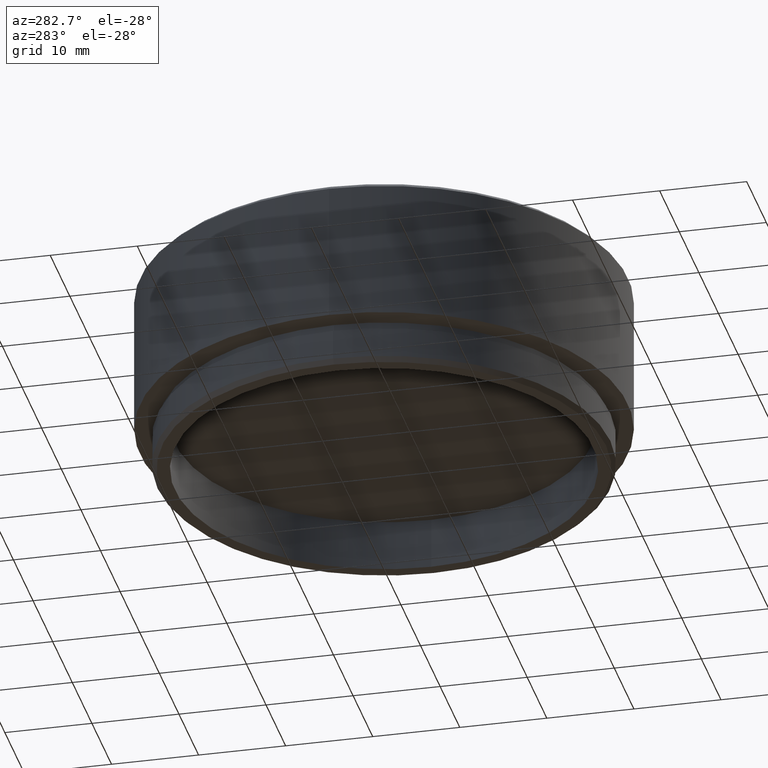
[diagram: clean part render]
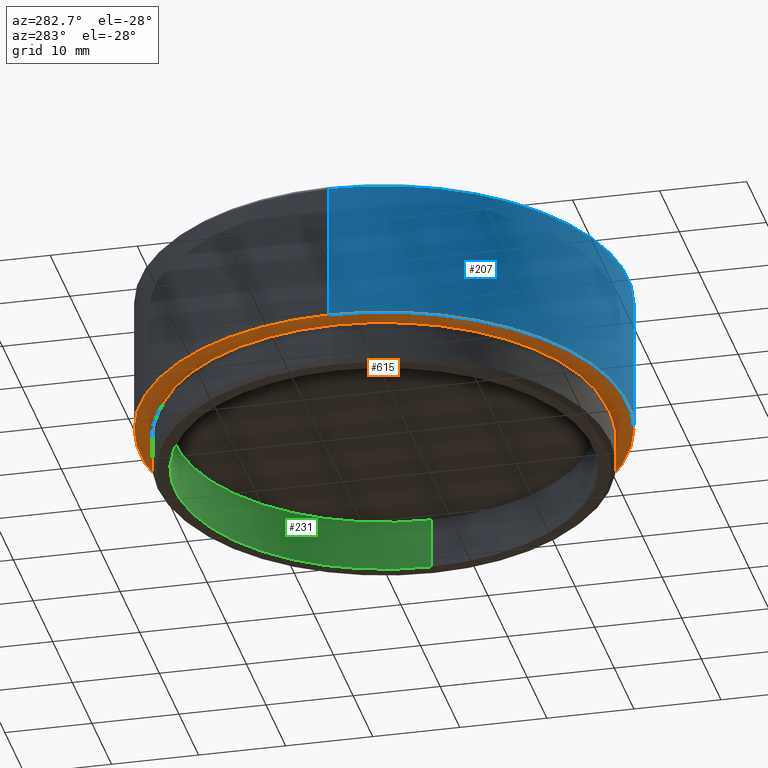
[diagram: same view with three faces highlighted in distinct colors, each labeled with its STEP entity id]
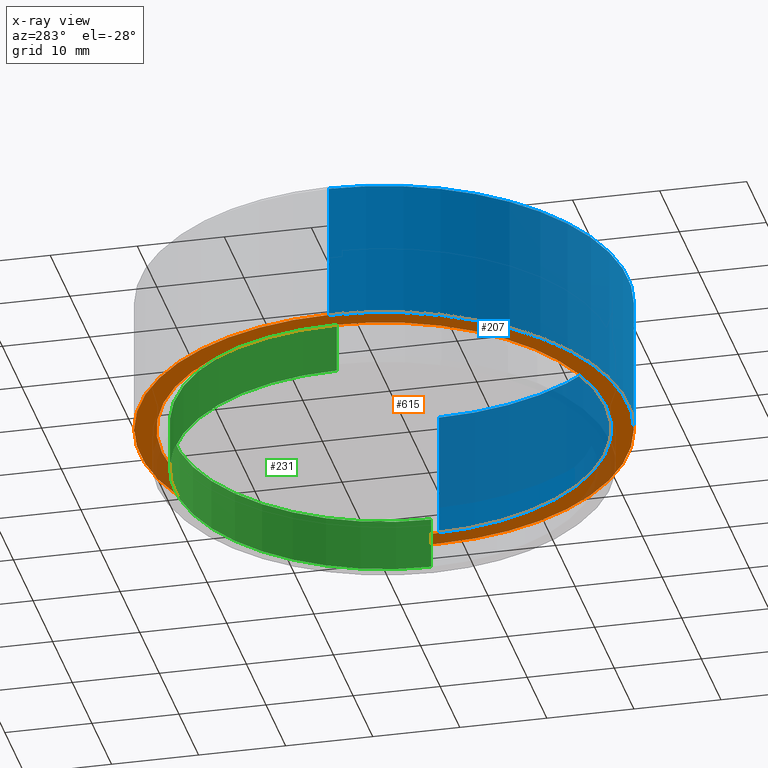
[diagram: x-ray of the same camera — body ghosted, the three highlighted faces saturated]
A machine part, auxiliary view with three faces highlighted in distinct colors.
The next image is the same camera in x-ray (body ghosted, the three faces saturated) — at least one of them is partly hidden behind the body in this view.
Their STEP definitions:

[orange] entity #615 — the highlighted planar face has unit normal (0, 0, -1).
#65 = CARTESIAN_POINT ( 'NONE',  ( 28.00000000000000000, 3.429011037612589276E-15, 5.000000000000000000 ) ) ;
#70 = EDGE_CURVE ( 'NONE', #530, #201, #1719, .T. ) ;
#81 = CARTESIAN_POINT ( 'NONE',  ( 0.000000000000000000, 0.000000000000000000, 5.000000000000000000 ) ) ;
#107 = FACE_BOUND ( 'NONE', #281, .T. ) ;
#152 = CARTESIAN_POINT ( 'NONE',  ( 25.50000000000000000, 0.000000000000000000, 5.000000000000000000 ) ) ;
#153 = VERTEX_POINT ( 'NONE', #509 ) ;
#197 = AXIS2_PLACEMENT_3D ( 'NONE', #1738, #1047, #1606 ) ;
#201 = VERTEX_POINT ( 'NONE', #532 ) ;
#275 = EDGE_CURVE ( 'NONE', #918, #153, #316, .T. ) ;
#281 = EDGE_LOOP ( 'NONE', ( #1148, #752 ) ) ;
#316 = CIRCLE ( 'NONE', #1161, 28.00000000000000000 ) ;
#485 = DIRECTION ( 'NONE',  ( -1.000000000000000000, 0.000000000000000000, 0.000000000000000000 ) ) ;
#503 = DIRECTION ( 'NONE',  ( 0.000000000000000000, 0.000000000000000000, -1.000000000000000000 ) ) ;
#509 = CARTESIAN_POINT ( 'NONE',  ( -28.00000000000000000, 0.000000000000000000, 5.000000000000000000 ) ) ;
#530 = VERTEX_POINT ( 'NONE', #152 ) ;
#532 = CARTESIAN_POINT ( 'NONE',  ( -25.50000000000000000, 3.122849337825750222E-15, 5.000000000000000000 ) ) ;
#541 = DIRECTION ( 'NONE',  ( 0.000000000000000000, 0.000000000000000000, -1.000000000000000000 ) ) ;
#615 = ADVANCED_FACE ( 'NONE', ( #1171, #107 ), #1293, .T. ) ;
#621 = DIRECTION ( 'NONE',  ( 0.000000000000000000, 0.000000000000000000, -1.000000000000000000 ) ) ;
#752 = ORIENTED_EDGE ( 'NONE', *, *, #1524, .F. ) ;
#780 = DIRECTION ( 'NONE',  ( -1.000000000000000000, 0.000000000000000000, 0.000000000000000000 ) ) ;
#812 = CIRCLE ( 'NONE', #197, 25.50000000000000000 ) ;
#841 = EDGE_LOOP ( 'NONE', ( #985, #1284 ) ) ;
#858 = AXIS2_PLACEMENT_3D ( 'NONE', #81, #621, #1716 ) ;
#918 = VERTEX_POINT ( 'NONE', #65 ) ;
#944 = AXIS2_PLACEMENT_3D ( 'NONE', #1297, #1157, #485 ) ;
#985 = ORIENTED_EDGE ( 'NONE', *, *, #1423, .T. ) ;
#1038 = CARTESIAN_POINT ( 'NONE',  ( 0.000000000000000000, 0.000000000000000000, 5.000000000000000000 ) ) ;
#1047 = DIRECTION ( 'NONE',  ( 0.000000000000000000, 0.000000000000000000, -1.000000000000000000 ) ) ;
#1075 = AXIS2_PLACEMENT_3D ( 'NONE', #1038, #503, #780 ) ;
#1148 = ORIENTED_EDGE ( 'NONE', *, *, #70, .F. ) ;
#1157 = DIRECTION ( 'NONE',  ( 0.000000000000000000, 0.000000000000000000, -1.000000000000000000 ) ) ;
#1161 = AXIS2_PLACEMENT_3D ( 'NONE', #1499, #541, #1253 ) ;
#1171 = FACE_OUTER_BOUND ( 'NONE', #841, .T. ) ;
#1253 = DIRECTION ( 'NONE',  ( -1.000000000000000000, 0.000000000000000000, 0.000000000000000000 ) ) ;
#1284 = ORIENTED_EDGE ( 'NONE', *, *, #275, .T. ) ;
#1293 = PLANE ( 'NONE',  #858 ) ;
#1297 = CARTESIAN_POINT ( 'NONE',  ( 0.000000000000000000, 0.000000000000000000, 5.000000000000000000 ) ) ;
#1423 = EDGE_CURVE ( 'NONE', #153, #918, #1688, .T. ) ;
#1499 = CARTESIAN_POINT ( 'NONE',  ( 0.000000000000000000, 0.000000000000000000, 5.000000000000000000 ) ) ;
#1524 = EDGE_CURVE ( 'NONE', #201, #530, #812, .T. ) ;
#1606 = DIRECTION ( 'NONE',  ( -1.000000000000000000, 0.000000000000000000, 0.000000000000000000 ) ) ;
#1688 = CIRCLE ( 'NONE', #1075, 28.00000000000000000 ) ;
#1716 = DIRECTION ( 'NONE',  ( -1.000000000000000000, 0.000000000000000000, -0.000000000000000000 ) ) ;
#1719 = CIRCLE ( 'NONE', #944, 25.50000000000000000 ) ;
#1738 = CARTESIAN_POINT ( 'NONE',  ( 0.000000000000000000, 0.000000000000000000, 5.000000000000000000 ) ) ;

[blue] entity #207 — the highlighted cylindrical surface (partial cylindrical patch) has radius 28 mm, axis along (-0, -0, -1).
#60 = ORIENTED_EDGE ( 'NONE', *, *, #275, .F. ) ;
#65 = CARTESIAN_POINT ( 'NONE',  ( 28.00000000000000000, 3.429011037612589276E-15, 5.000000000000000000 ) ) ;
#92 = DIRECTION ( 'NONE',  ( -0.000000000000000000, -0.000000000000000000, -1.000000000000000000 ) ) ;
#141 = EDGE_CURVE ( 'NONE', #1749, #918, #266, .T. ) ;
#153 = VERTEX_POINT ( 'NONE', #509 ) ;
#207 = ADVANCED_FACE ( 'NONE', ( #1321 ), #1191, .T. ) ;
#227 = CARTESIAN_POINT ( 'NONE',  ( -28.00000000000000000, 0.000000000000000000, 21.50000000000000000 ) ) ;
#242 = CARTESIAN_POINT ( 'NONE',  ( 0.000000000000000000, 0.000000000000000000, 20.99999999999999289 ) ) ;
#266 = LINE ( 'NONE', #803, #866 ) ;
#275 = EDGE_CURVE ( 'NONE', #918, #153, #316, .T. ) ;
#316 = CIRCLE ( 'NONE', #1161, 28.00000000000000000 ) ;
#434 = CIRCLE ( 'NONE', #1110, 28.00000000000000000 ) ;
#495 = LINE ( 'NONE', #227, #597 ) ;
#509 = CARTESIAN_POINT ( 'NONE',  ( -28.00000000000000000, 0.000000000000000000, 5.000000000000000000 ) ) ;
#541 = DIRECTION ( 'NONE',  ( 0.000000000000000000, 0.000000000000000000, -1.000000000000000000 ) ) ;
#588 = ORIENTED_EDGE ( 'NONE', *, *, #1301, .T. ) ;
#597 = VECTOR ( 'NONE', #1134, 1000.000000000000000 ) ;
#610 = EDGE_CURVE ( 'NONE', #1749, #805, #434, .T. ) ;
#648 = DIRECTION ( 'NONE',  ( -0.000000000000000000, -0.000000000000000000, -1.000000000000000000 ) ) ;
#663 = EDGE_LOOP ( 'NONE', ( #671, #1132, #588, #60 ) ) ;
#671 = ORIENTED_EDGE ( 'NONE', *, *, #141, .F. ) ;
#676 = CARTESIAN_POINT ( 'NONE',  ( -28.00000000000000000, 0.000000000000000000, 20.99999999999999289 ) ) ;
#755 = CARTESIAN_POINT ( 'NONE',  ( 28.00000000000000000, 3.429011037612589276E-15, 20.99999999999999289 ) ) ;
#760 = DIRECTION ( 'NONE',  ( 0.000000000000000000, 0.000000000000000000, -1.000000000000000000 ) ) ;
#803 = CARTESIAN_POINT ( 'NONE',  ( 28.00000000000000000, 3.429011037612589276E-15, 21.50000000000000000 ) ) ;
#805 = VERTEX_POINT ( 'NONE', #676 ) ;
#866 = VECTOR ( 'NONE', #648, 1000.000000000000000 ) ;
#910 = CARTESIAN_POINT ( 'NONE',  ( 0.000000000000000000, 0.000000000000000000, 21.50000000000000000 ) ) ;
#918 = VERTEX_POINT ( 'NONE', #65 ) ;
#1110 = AXIS2_PLACEMENT_3D ( 'NONE', #242, #760, #1720 ) ;
#1132 = ORIENTED_EDGE ( 'NONE', *, *, #610, .T. ) ;
#1134 = DIRECTION ( 'NONE',  ( -0.000000000000000000, -0.000000000000000000, -1.000000000000000000 ) ) ;
#1161 = AXIS2_PLACEMENT_3D ( 'NONE', #1499, #541, #1253 ) ;
#1173 = DIRECTION ( 'NONE',  ( -1.000000000000000000, 0.000000000000000000, 0.000000000000000000 ) ) ;
#1191 = CYLINDRICAL_SURFACE ( 'NONE', #1637, 28.00000000000000000 ) ;
#1253 = DIRECTION ( 'NONE',  ( -1.000000000000000000, 0.000000000000000000, 0.000000000000000000 ) ) ;
#1301 = EDGE_CURVE ( 'NONE', #805, #153, #495, .T. ) ;
#1321 = FACE_OUTER_BOUND ( 'NONE', #663, .T. ) ;
#1499 = CARTESIAN_POINT ( 'NONE',  ( 0.000000000000000000, 0.000000000000000000, 5.000000000000000000 ) ) ;
#1637 = AXIS2_PLACEMENT_3D ( 'NONE', #910, #92, #1173 ) ;
#1720 = DIRECTION ( 'NONE',  ( 1.000000000000000000, 0.000000000000000000, 0.000000000000000000 ) ) ;
#1749 = VERTEX_POINT ( 'NONE', #755 ) ;

[green] entity #231 — the highlighted cylindrical surface (partial cylindrical patch) has radius 24 mm, axis along (-0, -0, -1).
#30 = CARTESIAN_POINT ( 'NONE',  ( -24.00000000000000355, 0.000000000000000000, 5.999999999999998224 ) ) ;
#80 = VECTOR ( 'NONE', #580, 1000.000000000000000 ) ;
#113 = ORIENTED_EDGE ( 'NONE', *, *, #325, .F. ) ;
#145 = VERTEX_POINT ( 'NONE', #1340 ) ;
#231 = ADVANCED_FACE ( 'NONE', ( #498 ), #1594, .F. ) ;
#256 = ORIENTED_EDGE ( 'NONE', *, *, #1431, .F. ) ;
#271 = LINE ( 'NONE', #923, #1280 ) ;
#319 = EDGE_LOOP ( 'NONE', ( #256, #598, #800, #113 ) ) ;
#325 = EDGE_CURVE ( 'NONE', #145, #926, #1467, .T. ) ;
#498 = FACE_OUTER_BOUND ( 'NONE', #319, .T. ) ;
#580 = DIRECTION ( 'NONE',  ( -0.000000000000000000, -0.000000000000000000, -1.000000000000000000 ) ) ;
#598 = ORIENTED_EDGE ( 'NONE', *, *, #1689, .T. ) ;
#638 = DIRECTION ( 'NONE',  ( -0.000000000000000000, -0.000000000000000000, -1.000000000000000000 ) ) ;
#786 = CIRCLE ( 'NONE', #1006, 24.00000000000000355 ) ;
#800 = ORIENTED_EDGE ( 'NONE', *, *, #920, .T. ) ;
#819 = DIRECTION ( 'NONE',  ( -1.000000000000000000, 0.000000000000000000, 0.000000000000000000 ) ) ;
#828 = DIRECTION ( 'NONE',  ( 0.000000000000000000, 0.000000000000000000, 1.000000000000000000 ) ) ;
#837 = AXIS2_PLACEMENT_3D ( 'NONE', #961, #828, #1517 ) ;
#920 = EDGE_CURVE ( 'NONE', #1248, #926, #1536, .T. ) ;
#923 = CARTESIAN_POINT ( 'NONE',  ( 24.00000000000000355, 2.939152317953648289E-15, 21.50000000000000000 ) ) ;
#926 = VERTEX_POINT ( 'NONE', #1247 ) ;
#961 = CARTESIAN_POINT ( 'NONE',  ( 0.000000000000000000, 0.000000000000000000, 0.000000000000000000 ) ) ;
#1006 = AXIS2_PLACEMENT_3D ( 'NONE', #1151, #1310, #1708 ) ;
#1088 = DIRECTION ( 'NONE',  ( -0.000000000000000000, -0.000000000000000000, -1.000000000000000000 ) ) ;
#1151 = CARTESIAN_POINT ( 'NONE',  ( 0.000000000000000000, 0.000000000000000000, 5.999999999999998224 ) ) ;
#1247 = CARTESIAN_POINT ( 'NONE',  ( -24.00000000000000355, 0.000000000000000000, 0.000000000000000000 ) ) ;
#1248 = VERTEX_POINT ( 'NONE', #30 ) ;
#1280 = VECTOR ( 'NONE', #638, 1000.000000000000000 ) ;
#1282 = CARTESIAN_POINT ( 'NONE',  ( -24.00000000000000355, 0.000000000000000000, 21.50000000000000000 ) ) ;
#1310 = DIRECTION ( 'NONE',  ( 0.000000000000000000, 0.000000000000000000, 1.000000000000000000 ) ) ;
#1312 = AXIS2_PLACEMENT_3D ( 'NONE', #1636, #1088, #819 ) ;
#1340 = CARTESIAN_POINT ( 'NONE',  ( 24.00000000000000355, 2.939152317953648289E-15, 0.000000000000000000 ) ) ;
#1431 = EDGE_CURVE ( 'NONE', #1694, #145, #271, .T. ) ;
#1467 = CIRCLE ( 'NONE', #837, 24.00000000000000355 ) ;
#1517 = DIRECTION ( 'NONE',  ( 1.000000000000000000, 0.000000000000000000, 0.000000000000000000 ) ) ;
#1536 = LINE ( 'NONE', #1282, #80 ) ;
#1594 = CYLINDRICAL_SURFACE ( 'NONE', #1312, 24.00000000000000355 ) ;
#1636 = CARTESIAN_POINT ( 'NONE',  ( 0.000000000000000000, 0.000000000000000000, 21.50000000000000000 ) ) ;
#1689 = EDGE_CURVE ( 'NONE', #1694, #1248, #786, .T. ) ;
#1694 = VERTEX_POINT ( 'NONE', #1733 ) ;
#1708 = DIRECTION ( 'NONE',  ( 1.000000000000000000, 0.000000000000000000, 0.000000000000000000 ) ) ;
#1733 = CARTESIAN_POINT ( 'NONE',  ( 24.00000000000000355, 2.939152317953648289E-15, 5.999999999999998224 ) ) ;